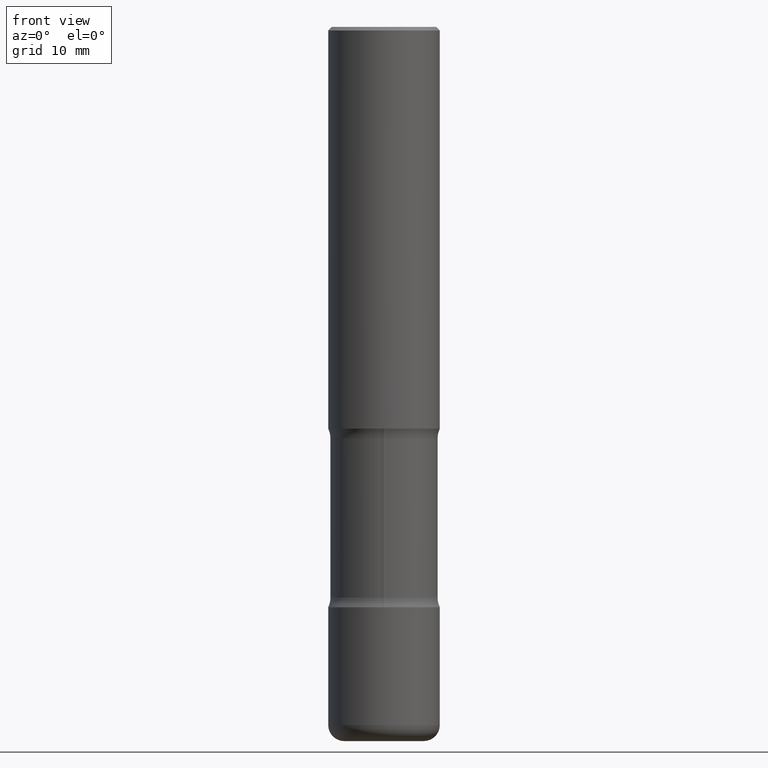
[diagram: clean part render]
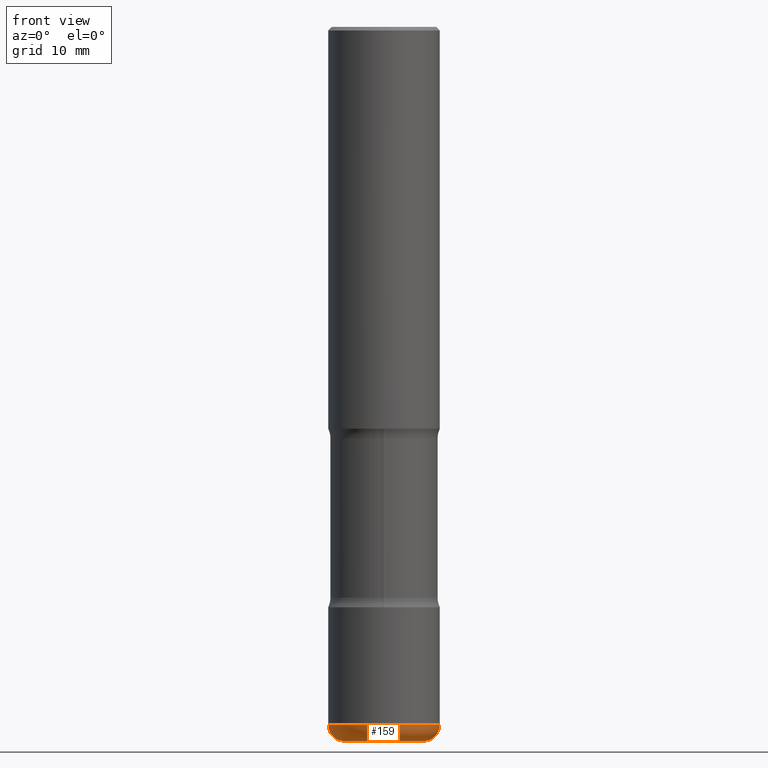
[diagram: same view with one face highlighted and labeled with its STEP entity id]
A machine part, front view. The second image highlights one B-rep face of the part: STEP entity #159.
In plain terms, the highlighted toroidal blend (fillet) surface has major radius 5.6515 mm and minor (blend) radius 2.286 mm.
Its self-contained STEP definition (entity closure, byte-faithful):
#21 = AXIS2_PLACEMENT_3D ( 'NONE', #600, #278, #392 ) ;
#26 = CARTESIAN_POINT ( 'NONE',  ( 0.2225000000000000033, -1.520540123066189404E-14, -3.910000000000000142 ) ) ;
#47 = CIRCLE ( 'NONE', #21, 0.3125000000000000000 ) ;
#58 = CARTESIAN_POINT ( 'NONE',  ( -0.2225000000000000588, -1.190810687696637220E-14, -4.000000000000000000 ) ) ;
#91 = DIRECTION ( 'NONE',  ( 7.105427357601001859E-15, 1.000000000000000000, -3.491481338843145583E-15 ) ) ;
#113 = CIRCLE ( 'NONE', #570, 0.2225000000000000588 ) ;
#131 = CIRCLE ( 'NONE', #639, 0.08999999999999992728 ) ;
#138 = DIRECTION ( 'NONE',  ( 1.000000000000000000, -6.982962677686264344E-15, 4.883557194083112340E-29 ) ) ;
#147 = ORIENTED_EDGE ( 'NONE', *, *, #689, .F. ) ;
#150 = VERTEX_POINT ( 'NONE', #446 ) ;
#159 = ADVANCED_FACE ( 'NONE', ( #497 ), #558, .T. ) ;
#179 = CARTESIAN_POINT ( 'NONE',  ( 0.3125000000000000000, -1.583386787165366057E-14, -3.910000000000000142 ) ) ;
#209 = DIRECTION ( 'NONE',  ( 1.000000000000000000, -6.982962677686273810E-15, 0.000000000000000000 ) ) ;
#274 = CIRCLE ( 'NONE', #313, 0.08999999999999992728 ) ;
#278 = DIRECTION ( 'NONE',  ( -2.445468806185136597E-29, 3.491481338843145583E-15, 1.000000000000000000 ) ) ;
#313 = AXIS2_PLACEMENT_3D ( 'NONE', #457, #91, #711 ) ;
#329 = DIRECTION ( 'NONE',  ( 1.000000000000000000, -6.982962677686267499E-15, 0.000000000000000000 ) ) ;
#338 = DIRECTION ( 'NONE',  ( -6.982962677686266711E-15, -1.000000000000000000, 3.491481338843145583E-15 ) ) ;
#365 = CARTESIAN_POINT ( 'NONE',  ( 9.781875224740546387E-29, -1.396592535537258233E-14, -4.000000000000000000 ) ) ;
#372 = EDGE_CURVE ( 'NONE', #150, #513, #47, .T. ) ;
#392 = DIRECTION ( 'NONE',  ( 1.000000000000000000, -6.982962677686269077E-15, 0.000000000000000000 ) ) ;
#398 = VERTEX_POINT ( 'NONE', #771 ) ;
#400 = EDGE_LOOP ( 'NONE', ( #147, #684, #586, #683 ) ) ;
#446 = CARTESIAN_POINT ( 'NONE',  ( -0.3125000000000000000, -1.143124598562638756E-14, -3.910000000000000142 ) ) ;
#453 = CARTESIAN_POINT ( 'NONE',  ( 9.561783032183883600E-29, -1.365169203487670064E-14, -3.910000000000000142 ) ) ;
#457 = CARTESIAN_POINT ( 'NONE',  ( -0.2225000000000000033, -1.207073444781047672E-14, -3.910000000000000142 ) ) ;
#497 = FACE_OUTER_BOUND ( 'NONE', #400, .T. ) ;
#513 = VERTEX_POINT ( 'NONE', #179 ) ;
#558 = TOROIDAL_SURFACE ( 'NONE', #722, 0.2225000000000000033, 0.08999999999999992728 ) ;
#570 = AXIS2_PLACEMENT_3D ( 'NONE', #365, #649, #329 ) ;
#586 = ORIENTED_EDGE ( 'NONE', *, *, #738, .T. ) ;
#592 = VERTEX_POINT ( 'NONE', #58 ) ;
#600 = CARTESIAN_POINT ( 'NONE',  ( 9.561783032183883600E-29, -1.365169203487670064E-14, -3.910000000000000142 ) ) ;
#615 = EDGE_CURVE ( 'NONE', #592, #398, #113, .T. ) ;
#639 = AXIS2_PLACEMENT_3D ( 'NONE', #26, #338, #209 ) ;
#649 = DIRECTION ( 'NONE',  ( -2.445468806185136597E-29, 3.491481338843145583E-15, 1.000000000000000000 ) ) ;
#683 = ORIENTED_EDGE ( 'NONE', *, *, #372, .F. ) ;
#684 = ORIENTED_EDGE ( 'NONE', *, *, #615, .T. ) ;
#689 = EDGE_CURVE ( 'NONE', #592, #150, #274, .T. ) ;
#711 = DIRECTION ( 'NONE',  ( -1.000000000000000000, 7.105427357600996337E-15, 0.000000000000000000 ) ) ;
#722 = AXIS2_PLACEMENT_3D ( 'NONE', #453, #748, #138 ) ;
#738 = EDGE_CURVE ( 'NONE', #398, #513, #131, .T. ) ;
#748 = DIRECTION ( 'NONE',  ( -2.445468806185136597E-29, 3.491481338843145583E-15, 1.000000000000000000 ) ) ;
#771 = CARTESIAN_POINT ( 'NONE',  ( 0.2225000000000000588, -1.551963455115777730E-14, -4.000000000000000000 ) ) ;